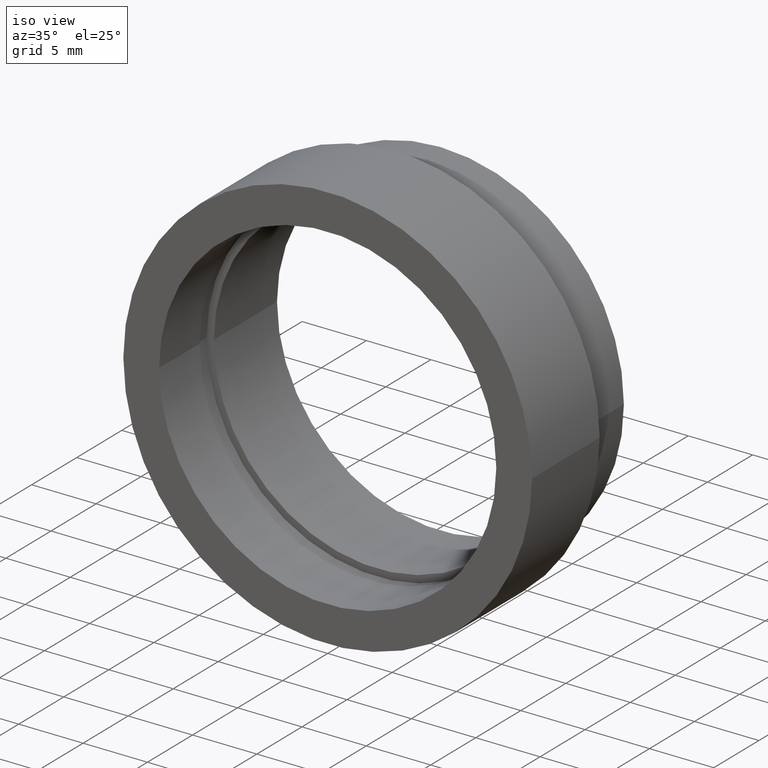
[diagram: clean part render]
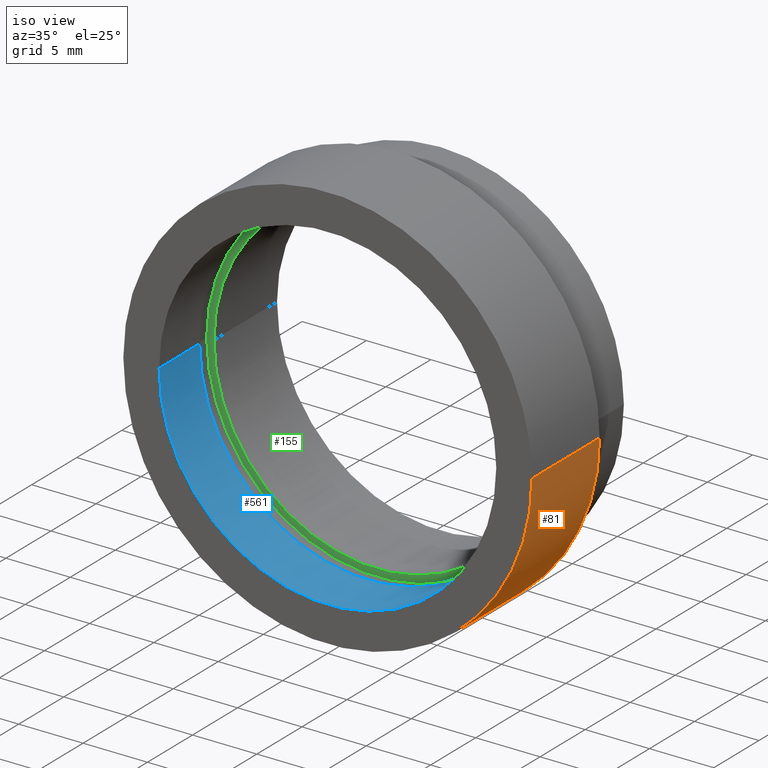
[diagram: same view with three faces highlighted in distinct colors, each labeled with its STEP entity id]
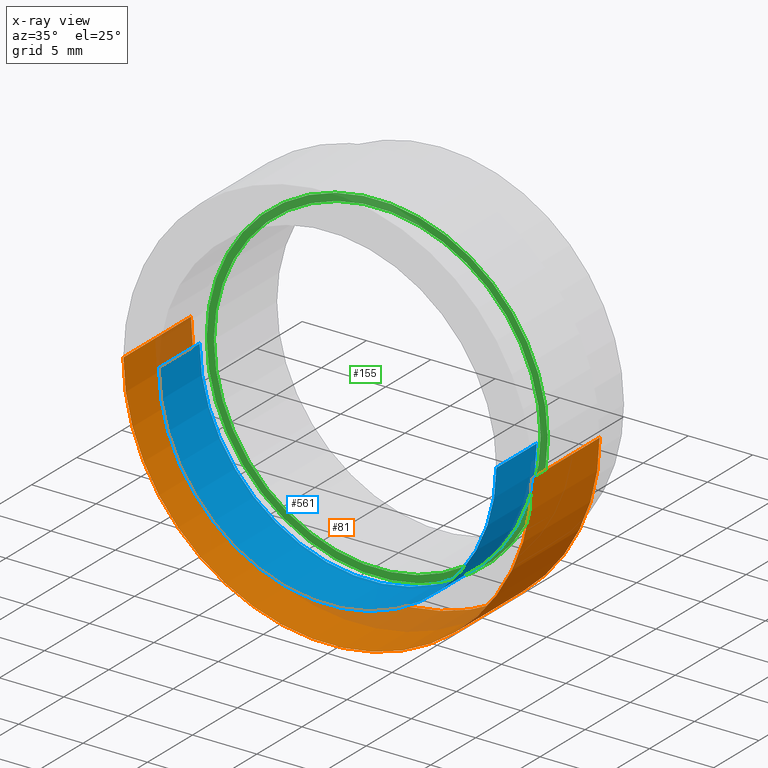
[diagram: x-ray of the same camera — body ghosted, the three highlighted faces saturated]
A machine part, iso view with three faces highlighted in distinct colors.
The next image is the same camera in x-ray (body ghosted, the three faces saturated) — at least one of them is partly hidden behind the body in this view.
Their STEP definitions:

[orange] entity #81 — the highlighted cylindrical surface (partial cylindrical patch) has radius 15.875 mm, axis along (-0, 1, -0).
#5 = CARTESIAN_POINT ( 'NONE',  ( -15.87499999999999300, -5.413573745600033100E-015, 0.0000000000000000000 ) ) ;
#56 = EDGE_CURVE ( 'NONE', #107, #453, #572, .T. ) ;
#66 = VERTEX_POINT ( 'NONE', #320 ) ;
#81 = ADVANCED_FACE ( 'NONE', ( #115 ), #553, .T. ) ;
#107 = VERTEX_POINT ( 'NONE', #380 ) ;
#115 = FACE_OUTER_BOUND ( 'NONE', #189, .T. ) ;
#117 = CARTESIAN_POINT ( 'NONE',  ( 15.87500000000000000, 16.88601823708208000, 1.944126793646423200E-015 ) ) ;
#128 = DIRECTION ( 'NONE',  ( -1.224646799147351000E-016, 1.000000000000000000, -0.0000000000000000000 ) ) ;
#134 = EDGE_CURVE ( 'NONE', #453, #66, #295, .T. ) ;
#150 = VERTEX_POINT ( 'NONE', #5 ) ;
#189 = EDGE_LOOP ( 'NONE', ( #377, #401, #354, #296 ) ) ;
#214 = DIRECTION ( 'NONE',  ( -1.000000000000000000, -1.092739197465705300E-016, 0.0000000000000000000 ) ) ;
#247 = EDGE_CURVE ( 'NONE', #150, #66, #571, .T. ) ;
#258 = CARTESIAN_POINT ( 'NONE',  ( 0.0000000000000000000, 16.88601823708207700, 0.0000000000000000000 ) ) ;
#295 = CIRCLE ( 'NONE', #399, 15.87500000000000000 ) ;
#296 = ORIENTED_EDGE ( 'NONE', *, *, #134, .F. ) ;
#308 = DIRECTION ( 'NONE',  ( -1.000000000000000000, -1.224646799147350700E-016, 0.0000000000000000000 ) ) ;
#320 = CARTESIAN_POINT ( 'NONE',  ( -15.87500000000000000, 7.499999999999996400, 0.0000000000000000000 ) ) ;
#337 = AXIS2_PLACEMENT_3D ( 'NONE', #258, #618, #416 ) ;
#354 = ORIENTED_EDGE ( 'NONE', *, *, #247, .T. ) ;
#361 = EDGE_CURVE ( 'NONE', #107, #150, #446, .T. ) ;
#377 = ORIENTED_EDGE ( 'NONE', *, *, #56, .F. ) ;
#380 = CARTESIAN_POINT ( 'NONE',  ( 15.87500000000000000, -1.525320158307194900E-015, 1.944126793646423200E-015 ) ) ;
#399 = AXIS2_PLACEMENT_3D ( 'NONE', #568, #128, #214 ) ;
#401 = ORIENTED_EDGE ( 'NONE', *, *, #361, .T. ) ;
#416 = DIRECTION ( 'NONE',  ( -1.000000000000000000, -2.185478394931410600E-016, 0.0000000000000000000 ) ) ;
#419 = CARTESIAN_POINT ( 'NONE',  ( 15.87500000000000000, 7.500000000000000000, 1.944126793646423200E-015 ) ) ;
#442 = VECTOR ( 'NONE', #531, 1000.000000000000000 ) ;
#446 = CIRCLE ( 'NONE', #501, 15.87499999999999600 ) ;
#453 = VERTEX_POINT ( 'NONE', #419 ) ;
#501 = AXIS2_PLACEMENT_3D ( 'NONE', #503, #608, #308 ) ;
#503 = CARTESIAN_POINT ( 'NONE',  ( 2.067940818438636500E-015, -3.469446951953614200E-015, 0.0000000000000000000 ) ) ;
#511 = DIRECTION ( 'NONE',  ( -1.224646799147351000E-016, 1.000000000000000000, -0.0000000000000000000 ) ) ;
#531 = DIRECTION ( 'NONE',  ( -1.224646799147351000E-016, 1.000000000000000000, -0.0000000000000000000 ) ) ;
#553 = CYLINDRICAL_SURFACE ( 'NONE', #337, 15.87500000000000000 ) ;
#554 = VECTOR ( 'NONE', #511, 1000.000000000000000 ) ;
#568 = CARTESIAN_POINT ( 'NONE',  ( 1.149455719078122700E-015, 7.499999999999998200, 0.0000000000000000000 ) ) ;
#571 = LINE ( 'NONE', #587, #442 ) ;
#572 = LINE ( 'NONE', #117, #554 ) ;
#587 = CARTESIAN_POINT ( 'NONE',  ( -15.87500000000000000, 16.88601823708207300, 0.0000000000000000000 ) ) ;
#608 = DIRECTION ( 'NONE',  ( -1.224646799147351000E-016, 1.000000000000000000, -0.0000000000000000000 ) ) ;
#618 = DIRECTION ( 'NONE',  ( -1.224646799147351000E-016, 1.000000000000000000, -0.0000000000000000000 ) ) ;

[blue] entity #561 — the highlighted cylindrical surface (partial cylindrical patch) has radius 13.1 mm, axis along (-0, 1, -0).
#7 = LINE ( 'NONE', #198, #309 ) ;
#8 = CARTESIAN_POINT ( 'NONE',  ( -13.09999999999999800, 4.499999999999993800, 0.0000000000000000000 ) ) ;
#27 = DIRECTION ( 'NONE',  ( -1.000000000000000000, -1.224646799147351000E-016, 0.0000000000000000000 ) ) ;
#32 = CARTESIAN_POINT ( 'NONE',  ( -13.09999999999999800, -1.604287306883029700E-015, 0.0000000000000000000 ) ) ;
#49 = CYLINDRICAL_SURFACE ( 'NONE', #249, 13.10000000000000000 ) ;
#68 = EDGE_CURVE ( 'NONE', #455, #278, #525, .T. ) ;
#82 = CIRCLE ( 'NONE', #524, 13.10000000000000000 ) ;
#120 = DIRECTION ( 'NONE',  ( -1.000000000000000000, -1.324216393875425300E-016, 0.0000000000000000000 ) ) ;
#136 = CARTESIAN_POINT ( 'NONE',  ( 13.10000000000000100, 1.604287306883029700E-015, 1.604287306883032600E-015 ) ) ;
#157 = CIRCLE ( 'NONE', #605, 13.10000000000000000 ) ;
#158 = DIRECTION ( 'NONE',  ( -1.224646799147351000E-016, 1.000000000000000000, -0.0000000000000000000 ) ) ;
#159 = CARTESIAN_POINT ( 'NONE',  ( -13.10000000000000000, 16.88601823708207700, 0.0000000000000000000 ) ) ;
#198 = CARTESIAN_POINT ( 'NONE',  ( 13.10000000000000000, 16.88601823708207700, 1.604287306883032600E-015 ) ) ;
#249 = AXIS2_PLACEMENT_3D ( 'NONE', #259, #365, #331 ) ;
#250 = VERTEX_POINT ( 'NONE', #136 ) ;
#251 = VECTOR ( 'NONE', #298, 1000.000000000000000 ) ;
#259 = CARTESIAN_POINT ( 'NONE',  ( 0.0000000000000000000, 16.88601823708207700, 0.0000000000000000000 ) ) ;
#278 = VERTEX_POINT ( 'NONE', #8 ) ;
#298 = DIRECTION ( 'NONE',  ( -1.224646799147351000E-016, 1.000000000000000000, -0.0000000000000000000 ) ) ;
#309 = VECTOR ( 'NONE', #158, 1000.000000000000000 ) ;
#331 = DIRECTION ( 'NONE',  ( -1.000000000000000000, 0.0000000000000000000, 0.0000000000000000000 ) ) ;
#353 = EDGE_CURVE ( 'NONE', #250, #449, #7, .T. ) ;
#365 = DIRECTION ( 'NONE',  ( -1.224646799147351000E-016, 1.000000000000000000, -0.0000000000000000000 ) ) ;
#370 = EDGE_CURVE ( 'NONE', #250, #455, #157, .T. ) ;
#405 = ORIENTED_EDGE ( 'NONE', *, *, #68, .F. ) ;
#418 = DIRECTION ( 'NONE',  ( -1.224646799147351000E-016, 1.000000000000000000, -0.0000000000000000000 ) ) ;
#449 = VERTEX_POINT ( 'NONE', #614 ) ;
#450 = EDGE_CURVE ( 'NONE', #449, #278, #82, .T. ) ;
#451 = FACE_OUTER_BOUND ( 'NONE', #577, .T. ) ;
#455 = VERTEX_POINT ( 'NONE', #32 ) ;
#465 = ORIENTED_EDGE ( 'NONE', *, *, #370, .F. ) ;
#476 = ORIENTED_EDGE ( 'NONE', *, *, #450, .T. ) ;
#492 = ORIENTED_EDGE ( 'NONE', *, *, #353, .T. ) ;
#514 = CARTESIAN_POINT ( 'NONE',  ( 1.516849758822328500E-015, 4.499999999999995600, 0.0000000000000000000 ) ) ;
#524 = AXIS2_PLACEMENT_3D ( 'NONE', #514, #418, #120 ) ;
#525 = LINE ( 'NONE', #159, #251 ) ;
#548 = CARTESIAN_POINT ( 'NONE',  ( 2.067940818438636100E-015, 0.0000000000000000000, 0.0000000000000000000 ) ) ;
#561 = ADVANCED_FACE ( 'NONE', ( #451 ), #49, .F. ) ;
#577 = EDGE_LOOP ( 'NONE', ( #465, #492, #476, #405 ) ) ;
#603 = DIRECTION ( 'NONE',  ( -1.224646799147351000E-016, 1.000000000000000000, -0.0000000000000000000 ) ) ;
#605 = AXIS2_PLACEMENT_3D ( 'NONE', #548, #603, #27 ) ;
#614 = CARTESIAN_POINT ( 'NONE',  ( 13.10000000000000100, 4.499999999999997300, 1.604287306883032600E-015 ) ) ;

[green] entity #155 — the highlighted planar face has unit normal (-0, 1, 0).
#34 = EDGE_CURVE ( 'NONE', #369, #287, #443, .T. ) ;
#37 = CIRCLE ( 'NONE', #268, 12.68999999999999800 ) ;
#48 = DIRECTION ( 'NONE',  ( -1.224646799147351000E-016, 1.000000000000000000, 0.0000000000000000000 ) ) ;
#57 = DIRECTION ( 'NONE',  ( -1.000000000000000000, -1.367000375080226400E-016, 0.0000000000000000000 ) ) ;
#58 = CARTESIAN_POINT ( 'NONE',  ( -12.68999999999999600, 5.499999999999994700, 0.0000000000000000000 ) ) ;
#85 = PLANE ( 'NONE',  #181 ) ;
#104 = CARTESIAN_POINT ( 'NONE',  ( 1.394385078907593200E-015, 5.499999999999996400, 0.0000000000000000000 ) ) ;
#119 = CARTESIAN_POINT ( 'NONE',  ( -13.24999999999999800, 5.499999999999994700, 0.0000000000000000000 ) ) ;
#126 = EDGE_LOOP ( 'NONE', ( #402, #178 ) ) ;
#137 = ORIENTED_EDGE ( 'NONE', *, *, #325, .F. ) ;
#144 = EDGE_CURVE ( 'NONE', #256, #483, #163, .T. ) ;
#155 = ADVANCED_FACE ( 'NONE', ( #195, #588 ), #85, .F. ) ;
#163 = CIRCLE ( 'NONE', #223, 13.25000000000000000 ) ;
#164 = CARTESIAN_POINT ( 'NONE',  ( 1.394385078907593200E-015, 5.499999999999996400, 0.0000000000000000000 ) ) ;
#178 = ORIENTED_EDGE ( 'NONE', *, *, #34, .T. ) ;
#181 = AXIS2_PLACEMENT_3D ( 'NONE', #264, #48, #475 ) ;
#195 = FACE_OUTER_BOUND ( 'NONE', #522, .T. ) ;
#215 = EDGE_CURVE ( 'NONE', #287, #369, #37, .T. ) ;
#223 = AXIS2_PLACEMENT_3D ( 'NONE', #332, #621, #326 ) ;
#256 = VERTEX_POINT ( 'NONE', #384 ) ;
#264 = CARTESIAN_POINT ( 'NONE',  ( 12.69000000000000000, 5.499999999999998200, 0.0000000000000000000 ) ) ;
#268 = AXIS2_PLACEMENT_3D ( 'NONE', #104, #481, #57 ) ;
#287 = VERTEX_POINT ( 'NONE', #58 ) ;
#297 = DIRECTION ( 'NONE',  ( -1.224646799147351000E-016, 1.000000000000000000, -0.0000000000000000000 ) ) ;
#303 = ORIENTED_EDGE ( 'NONE', *, *, #144, .F. ) ;
#312 = DIRECTION ( 'NONE',  ( -1.224646799147351000E-016, 1.000000000000000000, -0.0000000000000000000 ) ) ;
#325 = EDGE_CURVE ( 'NONE', #483, #256, #597, .T. ) ;
#326 = DIRECTION ( 'NONE',  ( -1.000000000000000000, -1.309225264888156400E-016, 0.0000000000000000000 ) ) ;
#332 = CARTESIAN_POINT ( 'NONE',  ( 1.394385078907593200E-015, 5.499999999999996400, 0.0000000000000000000 ) ) ;
#347 = DIRECTION ( 'NONE',  ( -1.000000000000000000, -1.309225264888156400E-016, 0.0000000000000000000 ) ) ;
#369 = VERTEX_POINT ( 'NONE', #403 ) ;
#384 = CARTESIAN_POINT ( 'NONE',  ( 13.25000000000000400, 5.499999999999998200, 1.622657008870243100E-015 ) ) ;
#402 = ORIENTED_EDGE ( 'NONE', *, *, #215, .T. ) ;
#403 = CARTESIAN_POINT ( 'NONE',  ( 12.69000000000000000, 5.499999999999998200, 1.554076788117991300E-015 ) ) ;
#404 = AXIS2_PLACEMENT_3D ( 'NONE', #164, #312, #408 ) ;
#408 = DIRECTION ( 'NONE',  ( -1.000000000000000000, -1.367000375080226400E-016, 0.0000000000000000000 ) ) ;
#443 = CIRCLE ( 'NONE', #404, 12.68999999999999800 ) ;
#452 = CARTESIAN_POINT ( 'NONE',  ( 1.394385078907593200E-015, 5.499999999999996400, 0.0000000000000000000 ) ) ;
#463 = AXIS2_PLACEMENT_3D ( 'NONE', #452, #297, #347 ) ;
#475 = DIRECTION ( 'NONE',  ( -1.000000000000000000, -1.224646799147351000E-016, 0.0000000000000000000 ) ) ;
#481 = DIRECTION ( 'NONE',  ( -1.224646799147351000E-016, 1.000000000000000000, -0.0000000000000000000 ) ) ;
#483 = VERTEX_POINT ( 'NONE', #119 ) ;
#522 = EDGE_LOOP ( 'NONE', ( #137, #303 ) ) ;
#588 = FACE_BOUND ( 'NONE', #126, .T. ) ;
#597 = CIRCLE ( 'NONE', #463, 13.25000000000000000 ) ;
#621 = DIRECTION ( 'NONE',  ( -1.224646799147351000E-016, 1.000000000000000000, -0.0000000000000000000 ) ) ;